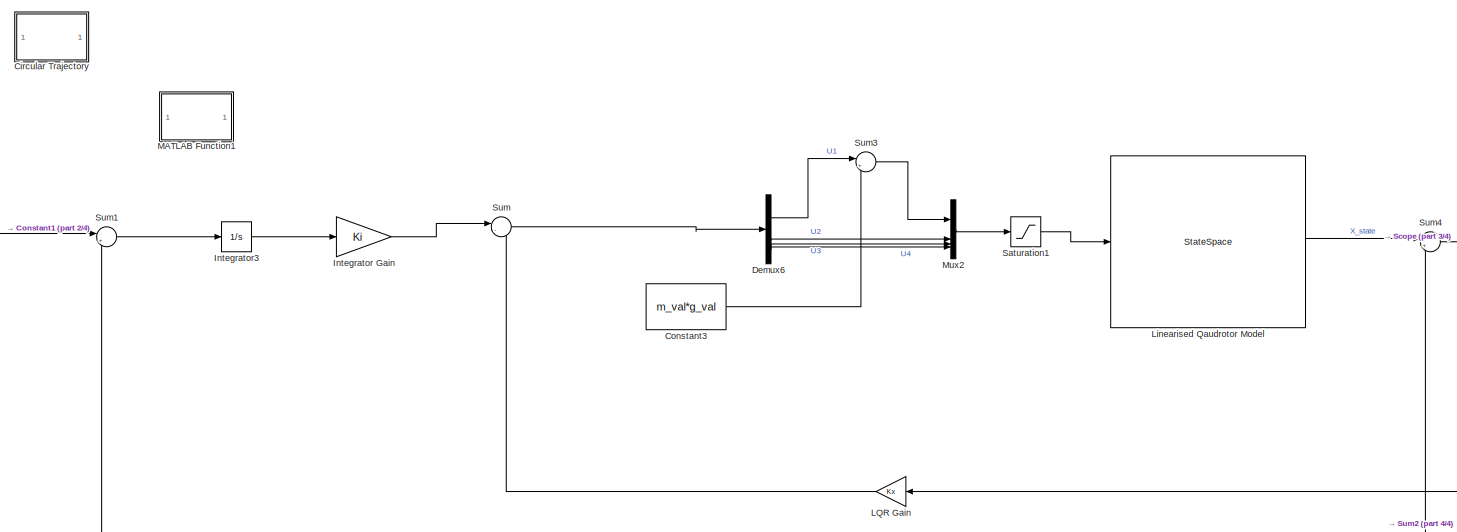
[diagram: root canvas - part 1/4, full width, top band]
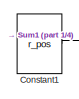
[diagram: root canvas - part 2/4, top left region]
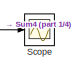
[diagram: root canvas - part 3/4, top right region]
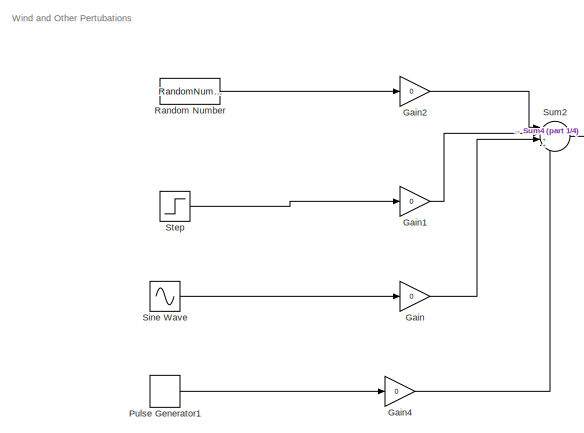
[diagram: root canvas - part 4/4, bottom center region]
MODEL slx_b52f5f7aa6e6
KIND model
CONFIG AbsTol = auto
CONFIG EnableMultiTasking = off
CONFIG FixedStep = auto
CONFIG MaxStep = auto
CONFIG MinStep = auto
CONFIG RelTol = 1e-3
CONFIG SampleTimeConstraint = Unconstrained
CONFIG SolverName = VariableStepAuto
CONFIG StartTime = 0.0
CONFIG StopTime = 10.0
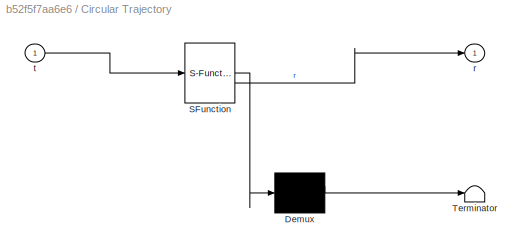
BLOCK [SubSystem] Circular Trajectory
  ErrorFcn = Stateflow.Translate.translate
  PermitHierarchicalResolution = ExplicitOnly
  SFBlockType = MATLAB Function
  TreatAsAtomicUnit = on
BLOCK [Demux] Circular Trajectory/ Demux 
  Outputs = 1
BLOCK [S-Function] Circular Trajectory/ SFunction 
  EnableBusSupport = on
  FunctionName = sf_sfun
  PortCounts = [1 2]
  SFcnIsStateOwnerBlock = off
  SFunctionDeploymentMode = off
  Tag = Stateflow S-Function 1
BLOCK [Terminator] Circular Trajectory/ Terminator 
BLOCK [Outport] Circular Trajectory/r
BLOCK [Inport] Circular Trajectory/t
BLOCK [Constant] Constant1
  Value = r_pos
  VectorParams1D = off
BLOCK [Constant] Constant3
  Value = m_val*g_val
BLOCK [Demux] Demux6
BLOCK [Gain] Gain
  Gain = 0
BLOCK [Gain] Gain1
  Gain = 0
BLOCK [Gain] Gain2
  Gain = 0
BLOCK [Gain] Gain4
  Gain = 0
BLOCK [Gain] Integrator Gain
  Gain = Ki
  Multiplication = Matrix(K*u)
BLOCK [Integrator] Integrator3
BLOCK [Gain] LQR Gain
  Gain = Kx
  Multiplication = Matrix(K*u)
BLOCK [StateSpace] Linearised Qaudrotor Model
  A = A_aug
  B = B_aug
  C = C_aug
  D = D_aug
  InitialCondition = 0
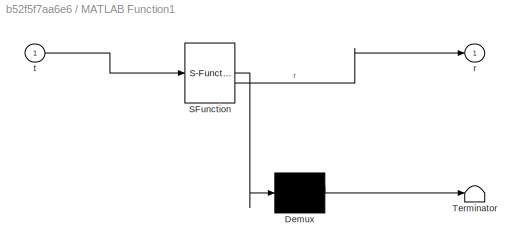
BLOCK [SubSystem] MATLAB Function1
  ErrorFcn = Stateflow.Translate.translate
  PermitHierarchicalResolution = ExplicitOnly
  SFBlockType = MATLAB Function
  TreatAsAtomicUnit = on
BLOCK [Demux] MATLAB Function1/ Demux 
  Outputs = 1
BLOCK [S-Function] MATLAB Function1/ SFunction 
  EnableBusSupport = on
  FunctionName = sf_sfun
  PortCounts = [1 2]
  SFcnIsStateOwnerBlock = off
  SFunctionDeploymentMode = off
  Tag = Stateflow S-Function 3
BLOCK [Terminator] MATLAB Function1/ Terminator 
BLOCK [Outport] MATLAB Function1/r
BLOCK [Inport] MATLAB Function1/t
BLOCK [Mux] Mux2
  DisplayOption = bar
BLOCK [DiscretePulseGenerator] Pulse Generator1
  Period = 10
  PhaseDelay = 5
  PulseType = Time based
  PulseWidth = 20
BLOCK [RandomNumber] Random Number
  SampleTime = 0.1
  Variance = 0.5
BLOCK [Saturate] Saturation1
  LowerLimit = [-3; -0.15; -0.1; -0.5]
  UpperLimit = [30; 0.15; 0.1; 0.5]
BLOCK [Scope] Scope
  Floating = off
  NumInputPorts = 1
  ScopeSpecificationString = Simulink.scopes.TimeScopeBlockCfg('CurrentConfiguration', extmgr.ConfigurationSet(extmgr.Configuration('Core','General UI',true),extmgr.Configuration('Core','Source UI',true),extmgr.Configuration('Sources','WiredSimulink',true),extmgr.Configuration('Visuals','Time Domain',true),extmgr.Configuration('Tools','Plot Navigation',true),extmgr.Configuration('Tools','Measurements',true)),'Version','2024a'...<+1ch>
BLOCK [Sin] Sine Wave
  Frequency = 0.5
  SampleTime = 0
BLOCK [Step] Step
  After = disturbance
  Before = zeros(12,1)
  SampleTime = 0
BLOCK [Sum] Sum
  Inputs = |--
BLOCK [Sum] Sum1
  Inputs = |+-
BLOCK [Sum] Sum2
  Inputs = |++++
BLOCK [Sum] Sum3
  Inputs = |++
BLOCK [Sum] Sum4
  Inputs = |++
ANNOTATION (root): Wind and Other Pertubations
LINE Constant1:1 -> Sum1:1
LINE Constant3:1 -> Sum3:2
LINE Demux6:1 -> Sum3:1
LINE Demux6:2 -> Mux2:2
LINE Demux6:3 -> Mux2:3
LINE Demux6:4 -> Mux2:4
LINE Gain1:1 -> Sum2:2
LINE Gain2:1 -> Sum2:1
LINE Gain4:1 -> Sum2:4
LINE Gain:1 -> Sum2:3
LINE Integrator Gain:1 -> Sum:1
LINE Integrator3:1 -> Integrator Gain:1
LINE LQR Gain:1 -> Sum:2
LINE Linearised Qaudrotor Model:1 -> Sum4:1
LINE Mux2:1 -> Saturation1:1
LINE Pulse Generator1:1 -> Gain4:1
LINE Random Number:1 -> Gain2:1
LINE Saturation1:1 -> Linearised Qaudrotor Model:1
LINE Sine Wave:1 -> Gain:1
LINE Step:1 -> Gain1:1
LINE Sum1:1 -> Integrator3:1
LINE Sum2:1 -> Sum4:2
LINE Sum3:1 -> Mux2:1
NET Sum4:1 -> LQR Gain:1, Scope:1, Sum1:2
LINE Sum:1 -> Demux6:1
note: NET lines group one-source signal fan-out (src -> all destinations, sorted); 1:1 wires keep LINE
CHART MATLAB Function1 states=1 transitions=1
  STATE_LABEL 'eML_blk_kernel()'
  STATE_LABEL 'SCRIPT:\nfunction r = rect_trajectory(t)\n\n% Parameters\nL = 10;        % Length of rectangle (x-direction)\nW = 5;         % Width of rectangle (y-direction)\nz0 = 10;       % Fixed height\nT_side = 5;    % Time to complete one side\nT_cycle = 4 * T_side;\n\n% Normalize time to current phase\nt_mod = mod(t, T_cycle);\n\n% Initialize reference\nx = 0;\ny = 0;\n\nif t_mod < T_side\n    % Move right (+x)\n    x = L *...<+394ch>'
CHART Circular Trajectory states=1 transitions=1
  STATE_LABEL 'eML_blk_kernel()'
  STATE_LABEL 'SCRIPT:\n\n\nfunction r = trajectory(t)\n\n% Parameters (you can also pass these in or make them tunable)\nR = 5;           % Radius of circle (meters)\nomega = 0.1;     % Angular frequency (rad/s)\nz0 = 10;         % Base altitude (meters)\nA = 2;           % Amplitude of vertical oscillation (meters)\nomega_z = 0.05;  % Vertical oscillation frequency (rad/s)\n\n% Reference trajectory components\nr_x = R * co...<+149ch>'
CHART  states=0 transitions=0
CHART  states=0 transitions=0
